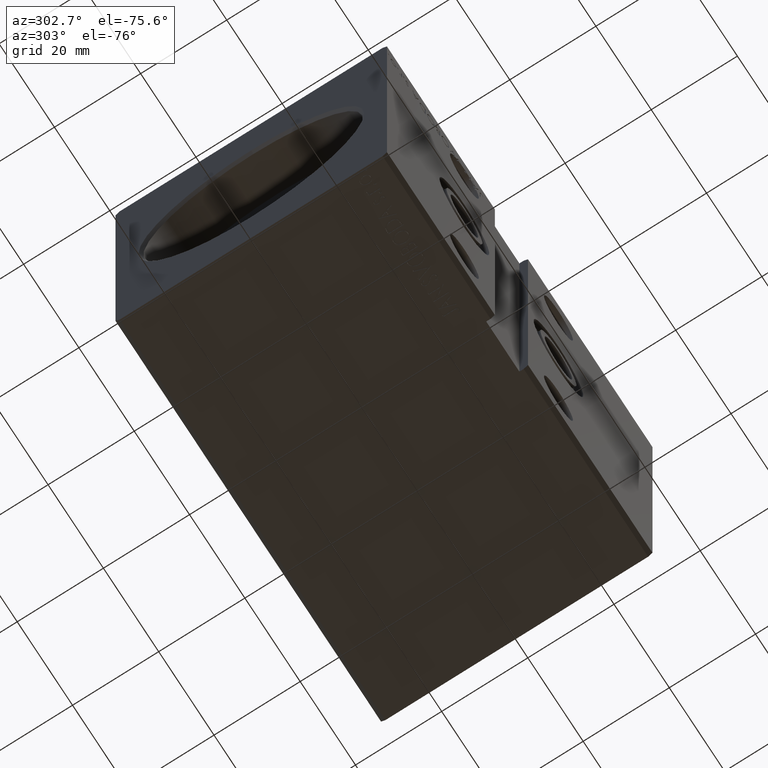
[diagram: clean part render]
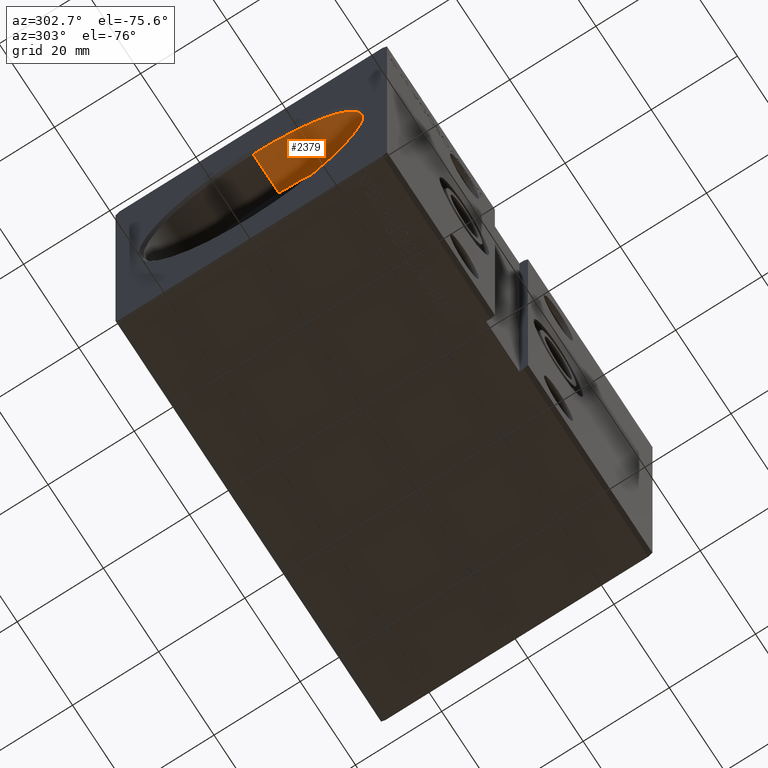
[diagram: same view with one face highlighted and labeled with its STEP entity id]
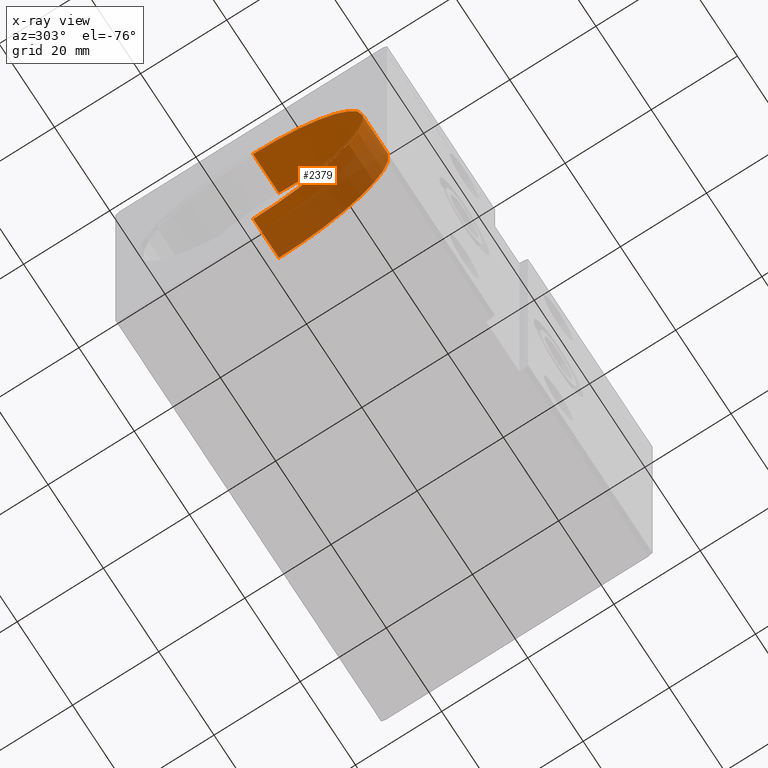
[diagram: x-ray of the same camera — body ghosted, the highlighted face saturated]
A machine part, auxiliary view. The second image highlights one B-rep face of the part: STEP entity #2379.
The next image is the same camera in x-ray: the body ghosted, the highlighted face saturated — about 44% of this face is hidden behind the body in this view.
In plain terms, the highlighted cylindrical surface (partial cylindrical patch) has radius 25.5 mm, axis along (-1, -0, -0).
Its self-contained STEP definition (entity closure, byte-faithful):
#1286 = EDGE_CURVE ( 'NONE', #38519, #2489, #4627, .T. ) ;
#2379 = ADVANCED_FACE ( 'NONE', ( #31124 ), #22075, .F. ) ;
#2489 = VERTEX_POINT ( 'NONE', #32550 ) ;
#2562 = CARTESIAN_POINT ( 'NONE',  ( 10.00000000000000000, 0.000000000000000000, 0.000000000000000000 ) ) ;
#3092 = AXIS2_PLACEMENT_3D ( 'NONE', #40280, #5332, #12118 ) ;
#3744 = CIRCLE ( 'NONE', #3092, 25.50000000000000000 ) ;
#4627 = LINE ( 'NONE', #36275, #35466 ) ;
#5231 = VERTEX_POINT ( 'NONE', #38124 ) ;
#5332 = DIRECTION ( 'NONE',  ( -1.000000000000000000, 0.000000000000000000, 0.000000000000000000 ) ) ;
#5525 = CARTESIAN_POINT ( 'NONE',  ( 10.00000000000000000, 0.000000000000000000, 0.000000000000000000 ) ) ;
#6117 = CIRCLE ( 'NONE', #31731, 25.50000000000000000 ) ;
#7891 = CARTESIAN_POINT ( 'NONE',  ( 0.6999999999999784173, 3.122849337825750222E-15, -25.50000000000000000 ) ) ;
#8154 = DIRECTION ( 'NONE',  ( -1.000000000000000000, -0.000000000000000000, -0.000000000000000000 ) ) ;
#9009 = DIRECTION ( 'NONE',  ( -1.000000000000000000, 0.000000000000000000, 0.000000000000000000 ) ) ;
#9981 = ORIENTED_EDGE ( 'NONE', *, *, #34595, .T. ) ;
#10770 = CARTESIAN_POINT ( 'NONE',  ( 10.00000000000000000, 0.000000000000000000, 25.50000000000000000 ) ) ;
#12118 = DIRECTION ( 'NONE',  ( 0.000000000000000000, 0.000000000000000000, -1.000000000000000000 ) ) ;
#12454 = EDGE_CURVE ( 'NONE', #5231, #39404, #33224, .T. ) ;
#13222 = EDGE_CURVE ( 'NONE', #5231, #38519, #6117, .T. ) ;
#13366 = ORIENTED_EDGE ( 'NONE', *, *, #12454, .T. ) ;
#14293 = DIRECTION ( 'NONE',  ( -1.000000000000000000, -0.000000000000000000, -0.000000000000000000 ) ) ;
#17133 = ORIENTED_EDGE ( 'NONE', *, *, #1286, .F. ) ;
#20542 = ORIENTED_EDGE ( 'NONE', *, *, #13222, .F. ) ;
#22075 = CYLINDRICAL_SURFACE ( 'NONE', #23698, 25.50000000000000000 ) ;
#23698 = AXIS2_PLACEMENT_3D ( 'NONE', #2562, #28452, #34620 ) ;
#25602 = EDGE_LOOP ( 'NONE', ( #20542, #13366, #9981, #17133 ) ) ;
#28450 = VECTOR ( 'NONE', #8154, 1000.000000000000000 ) ;
#28452 = DIRECTION ( 'NONE',  ( -1.000000000000000000, -0.000000000000000000, -0.000000000000000000 ) ) ;
#29534 = CARTESIAN_POINT ( 'NONE',  ( 10.00000000000000000, 3.122849337825750222E-15, -25.50000000000000000 ) ) ;
#31124 = FACE_OUTER_BOUND ( 'NONE', #25602, .T. ) ;
#31731 = AXIS2_PLACEMENT_3D ( 'NONE', #5525, #9009, #34093 ) ;
#32550 = CARTESIAN_POINT ( 'NONE',  ( 0.6999999999999784173, 0.000000000000000000, 25.50000000000000000 ) ) ;
#33224 = LINE ( 'NONE', #29534, #28450 ) ;
#34093 = DIRECTION ( 'NONE',  ( 0.000000000000000000, 0.000000000000000000, 1.000000000000000000 ) ) ;
#34595 = EDGE_CURVE ( 'NONE', #39404, #2489, #3744, .T. ) ;
#34620 = DIRECTION ( 'NONE',  ( 0.000000000000000000, 0.000000000000000000, 1.000000000000000000 ) ) ;
#35466 = VECTOR ( 'NONE', #14293, 1000.000000000000000 ) ;
#36275 = CARTESIAN_POINT ( 'NONE',  ( 10.00000000000000000, 0.000000000000000000, 25.50000000000000000 ) ) ;
#38124 = CARTESIAN_POINT ( 'NONE',  ( 10.00000000000000000, 3.122849337825750222E-15, -25.50000000000000000 ) ) ;
#38519 = VERTEX_POINT ( 'NONE', #10770 ) ;
#39404 = VERTEX_POINT ( 'NONE', #7891 ) ;
#40280 = CARTESIAN_POINT ( 'NONE',  ( 0.6999999999999784173, 0.000000000000000000, 0.000000000000000000 ) ) ;